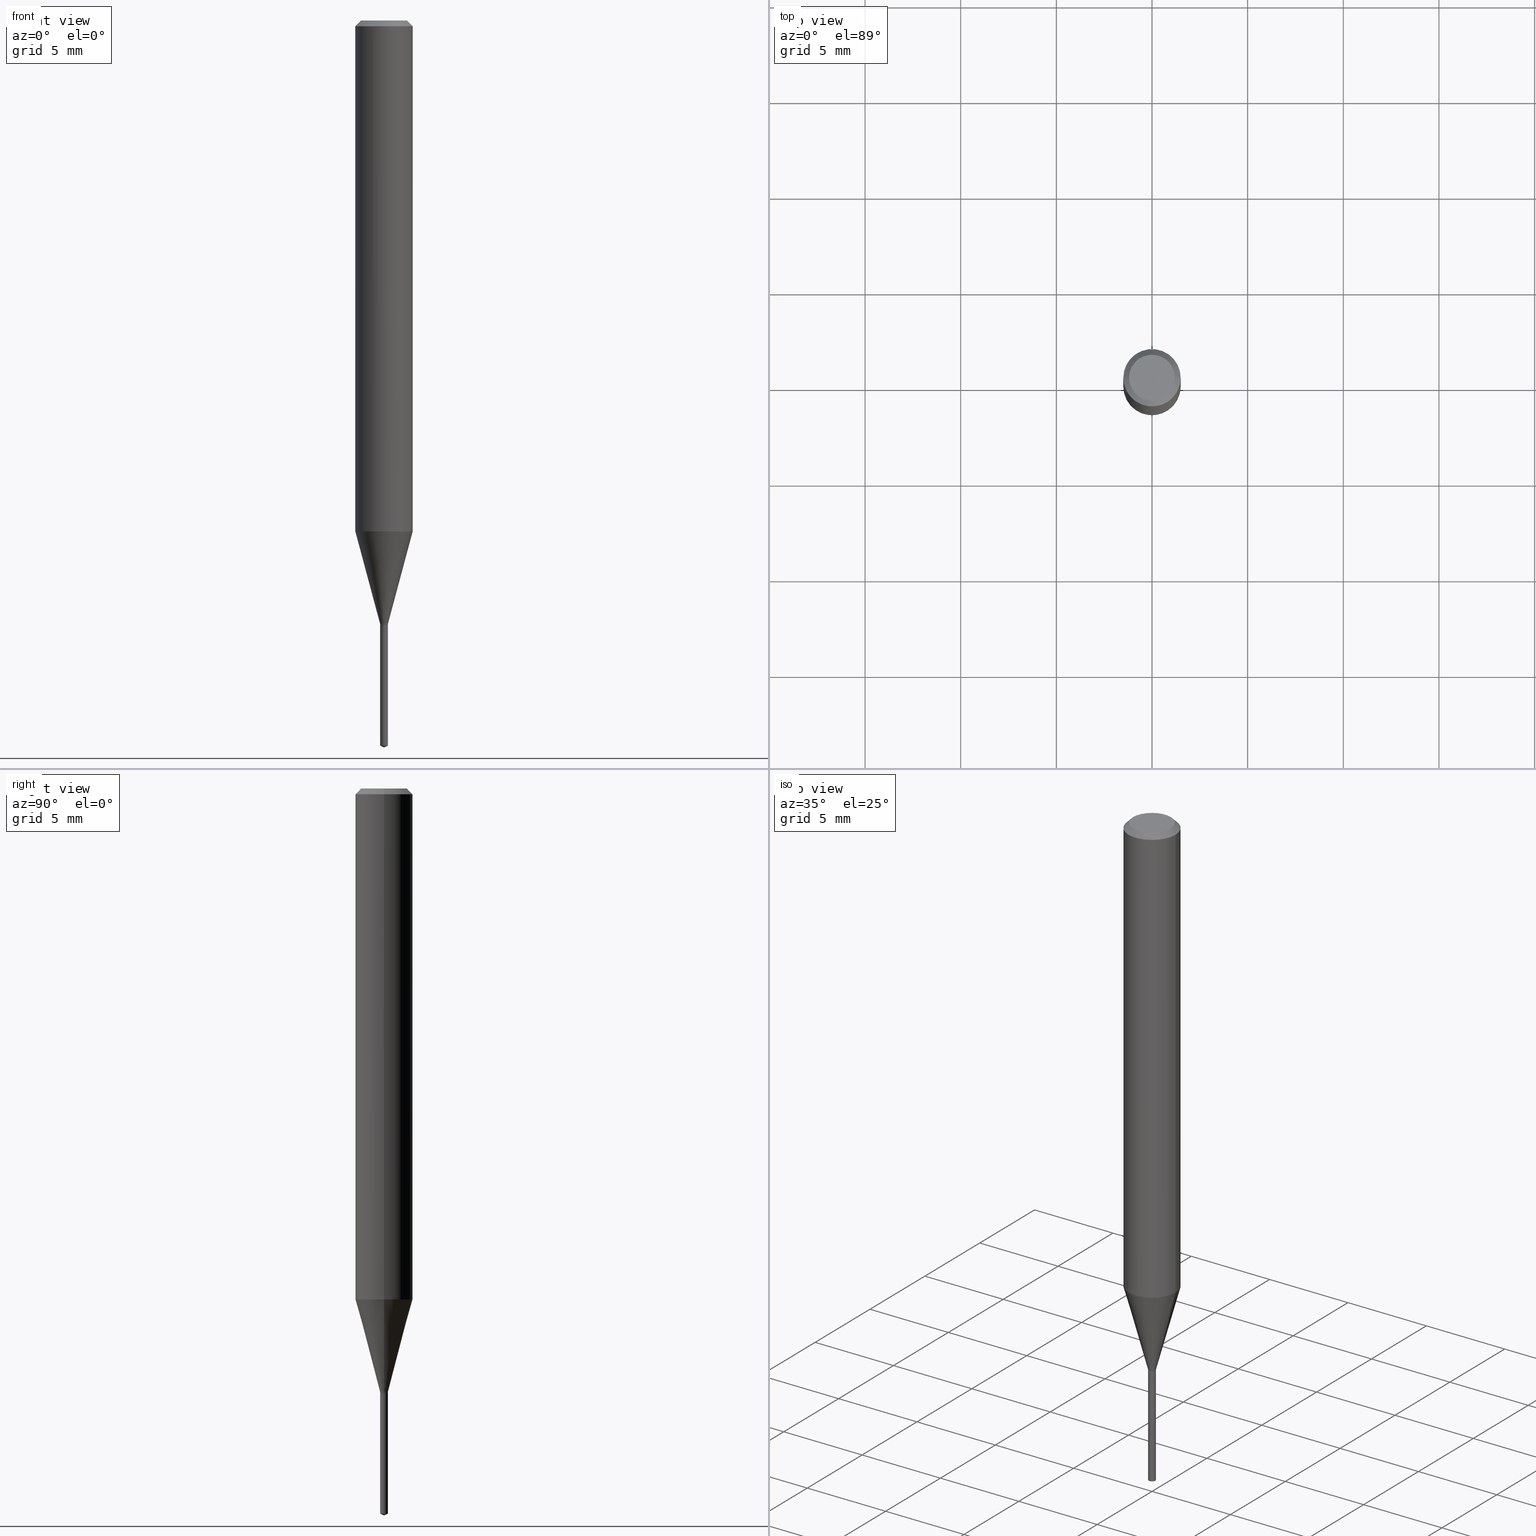
[diagram: canonical four-view strip — front | top / right | iso, engineering-drawing reading convention]
A machine part, canonical four-view strip (front | top / right | iso — engineering-drawing reading convention). The complete STEP part file that produces these views, byte-faithful:
ISO-10303-21;
HEADER;
FILE_DESCRIPTION (( 'STEP AP203' ),
    '1' );
FILE_NAME ('08265.STEP',
    '2024-04-24T14:00:18',
    ( '' ),
    ( '' ),
    'SwSTEP 2.0',
    'SolidWorks 2023',
    '' );
FILE_SCHEMA (( 'CONFIG_CONTROL_DESIGN' ));
ENDSEC;

DATA;
#1 = COORDINATED_UNIVERSAL_TIME_OFFSET ( 5, 0, .BEHIND. ) ;
#2 = AXIS2_PLACEMENT_3D ( 'NONE', #402, #371, #288 ) ;
#3 = ORIENTED_EDGE ( 'NONE', *, *, #348, .F. ) ;
#4 = LINE ( 'NONE', #317, #96 ) ;
#5 = ADVANCED_FACE ( 'NONE', ( #278 ), #463, .T. ) ;
#6 = VERTEX_POINT ( 'NONE', #207 ) ;
#7 = EDGE_LOOP ( 'NONE', ( #222, #225 ) ) ;
#8 = DIRECTION ( 'NONE',  ( -0.2588190451025211281, 5.211531920934547886E-15, 0.9659258262890679791 ) ) ;
#9 = CARTESIAN_POINT ( 'NONE',  ( 0.000000000000000000, 0.000000000000000000, 0.000000000000000000 ) ) ;
#10 = EDGE_LOOP ( 'NONE', ( #230, #16, #115, #62 ) ) ;
#11 = LOCAL_TIME ( 10, 0, 18.00000000000000000, #1 ) ;
#12 = LINE ( 'NONE', #240, #439 ) ;
#13 = ADVANCED_FACE ( 'NONE', ( #172 ), #138, .T. ) ;
#14 = DIRECTION ( 'NONE',  ( 1.000000000000000000, -6.982962677686314831E-15, 0.000000000000000000 ) ) ;
#15 = PERSON_AND_ORGANIZATION ( #339, #393 ) ;
#16 = ORIENTED_EDGE ( 'NONE', *, *, #215, .T. ) ;
#17 = FACE_OUTER_BOUND ( 'NONE', #260, .T. ) ;
#18 = DIRECTION ( 'NONE',  ( 1.000000000000000000, -6.982962677686265922E-15, 4.876176775795935793E-29 ) ) ;
#20 = CARTESIAN_POINT ( 'NONE',  ( -0.05905000000000006771, 4.195754854663396409E-16, -2.904631170795525045E-30 ) ) ;
#19 = AXIS2_PLACEMENT_3D ( 'NONE', #275, #356, #208 ) ;
#21 = APPROVAL ( #295, 'UNSPECIFIED' ) ;
#22 = EDGE_CURVE ( 'NONE', #233, #43, #473, .T. ) ;
#23 = DIRECTION ( 'NONE',  ( -2.445468806185136597E-29, 3.491481338843145583E-15, 1.000000000000000000 ) ) ;
#24 = DIRECTION ( 'NONE',  ( 2.442705339250343681E-29, -3.495438780780538501E-15, -1.000000000000000000 ) ) ;
#25 = DIRECTION ( 'NONE',  ( 0.2588190451025211281, 1.565188264969622954E-15, 0.9659258262890679791 ) ) ;
#26 = CARTESIAN_POINT ( 'NONE',  ( -0.008049999999999999864, 5.719869022868806400E-17, -3.959742747655199383E-31 ) ) ;
#27 = FACE_OUTER_BOUND ( 'NONE', #450, .T. ) ;
#28 = DIRECTION ( 'NONE',  ( 2.445468806185136597E-29, -3.491481338843145583E-15, -1.000000000000000000 ) ) ;
#29 = AXIS2_PLACEMENT_3D ( 'NONE', #307, #64, #231 ) ;
#30 = CARTESIAN_POINT ( 'NONE',  ( 3.042407741774928155E-29, -4.343751933654757151E-15, -1.244099999999999984 ) ) ;
#31 = CARTESIAN_POINT ( 'NONE',  ( 4.132873053354867254E-48, -5.900647395337818946E-34, -1.690012582823346072E-19 ) ) ;
#32 = FACE_OUTER_BOUND ( 'NONE', #411, .T. ) ;
#33 = CARTESIAN_POINT ( 'NONE',  ( -5.621284955534401592E-17, -0.008050000000004343612, -1.244099999999999984 ) ) ;
#34 = DIRECTION ( 'NONE',  ( -1.000000000000000000, 6.982962677686265922E-15, -4.876176775795935793E-29 ) ) ;
#35 = CARTESIAN_POINT ( 'NONE',  ( 0.05905000000000013016, -4.083166651296605957E-15, -1.051365408813987212 ) ) ;
#36 = EDGE_LOOP ( 'NONE', ( #384, #107, #187, #431 ) ) ;
#37 = PERSON_AND_ORGANIZATION_ROLE ( 'creator' ) ;
#38 = ORIENTED_EDGE ( 'NONE', *, *, #472, .F. ) ;
#39 = DIRECTION ( 'NONE',  ( -2.442705339250343681E-29, 3.495438780780538895E-15, 1.000000000000000000 ) ) ;
#40 = VECTOR ( 'NONE', #212, 39.37007874015748143 ) ;
#41 = CIRCLE ( 'NONE', #29, 0.05905000000000013016 ) ;
#42 = CALENDAR_DATE ( 2024, 24, 4 ) ;
#43 = VERTEX_POINT ( 'NONE', #265 ) ;
#44 = LINE ( 'NONE', #316, #142 ) ;
#45 = ORIENTED_EDGE ( 'NONE', *, *, #229, .T. ) ;
#46 = EDGE_CURVE ( 'NONE', #159, #233, #423, .T. ) ;
#47 = APPROVAL_ROLE ( '' ) ;
#48 = AXIS2_PLACEMENT_3D ( 'NONE', #363, #24, #171 ) ;
#49 = VERTEX_POINT ( 'NONE', #124 ) ;
#50 = ORIENTED_EDGE ( 'NONE', *, *, #109, .F. ) ;
#51 = CARTESIAN_POINT ( 'NONE',  ( 3.042407741774928155E-29, -4.343751933654757151E-15, -1.244099999999999984 ) ) ;
#52 = ORIENTED_EDGE ( 'NONE', *, *, #46, .T. ) ;
#53 = CARTESIAN_POINT ( 'NONE',  ( 0.007549999999999999420, -4.396473301871288926E-15, -1.244099999999999984 ) ) ;
#54 = ADVANCED_FACE ( 'NONE', ( #250 ), #99, .T. ) ;
#55 = VECTOR ( 'NONE', #25, 39.37007874015748854 ) ;
#56 = APPROVAL_PERSON_ORGANIZATION ( #15, #141, #129 ) ;
#57 = CARTESIAN_POINT ( 'NONE',  ( 0.008049999999999999864, -5.621284955537444870E-17, 3.925322304515728240E-31 ) ) ;
#58 = PERSON_AND_ORGANIZATION_ROLE ( 'design_owner' ) ;
#59 = FACE_OUTER_BOUND ( 'NONE', #232, .T. ) ;
#60 = DIRECTION ( 'NONE',  ( -2.445468806185136597E-29, 3.491481338843145583E-15, 1.000000000000000000 ) ) ;
#61 = ADVANCED_FACE ( 'NONE', ( #459 ), #432, .F. ) ;
#62 = ORIENTED_EDGE ( 'NONE', *, *, #404, .F. ) ;
#63 = CARTESIAN_POINT ( 'NONE',  ( 3.042407741774928155E-29, -4.343751933654757151E-15, -1.244099999999999984 ) ) ;
#64 = DIRECTION ( 'NONE',  ( -2.445468806185136597E-29, 3.491481338843145583E-15, 1.000000000000000000 ) ) ;
#65 = CARTESIAN_POINT ( 'NONE',  ( -5.621284955533795155E-17, -0.008050000000005212708, -1.492346223351852297 ) ) ;
#66 = CIRCLE ( 'NONE', #121, 0.008050000000000001599 ) ;
#67 = AXIS2_PLACEMENT_3D ( 'NONE', #185, #74, #440 ) ;
#68 = CYLINDRICAL_SURFACE ( 'NONE', #19, 0.008049999999999999864 ) ;
#69 = CARTESIAN_POINT ( 'NONE',  ( -0.007549999999999999420, -4.290105957104869974E-15, -1.244099999999999984 ) ) ;
#70 = FACE_OUTER_BOUND ( 'NONE', #342, .T. ) ;
#71 = EDGE_CURVE ( 'NONE', #486, #349, #168, .T. ) ;
#72 = CYLINDRICAL_SURFACE ( 'NONE', #2, 0.05905000000000006771 ) ;
#73 = CARTESIAN_POINT ( 'NONE',  ( 3.041185007371835914E-29, -4.342006192985336437E-15, -1.243600000000000039 ) ) ;
#74 = DIRECTION ( 'NONE',  ( -2.445468806185136597E-29, 3.491481338843145583E-15, 1.000000000000000000 ) ) ;
#75 = CIRCLE ( 'NONE', #343, 0.008049999999999999864 ) ;
#76 = PERSON_AND_ORGANIZATION ( #339, #393 ) ;
#77 = EDGE_LOOP ( 'NONE', ( #261, #358, #79, #306 ) ) ;
#78 = SECURITY_CLASSIFICATION_LEVEL ( 'unclassified' ) ;
#79 = ORIENTED_EDGE ( 'NONE', *, *, #273, .F. ) ;
#80 = CONICAL_SURFACE ( 'NONE', #108, 0.05904999999999999832, 0.7853981633974452814 ) ;
#81 = APPROVAL_ROLE ( '' ) ;
#82 = APPROVAL_DATE_TIME ( #419, #134 ) ;
#83 = COORDINATED_UNIVERSAL_TIME_OFFSET ( 5, 0, .BEHIND. ) ;
#84 = VERTEX_POINT ( 'NONE', #369 ) ;
#85 = DATE_AND_TIME ( #184, #302 ) ;
#86 = VERTEX_POINT ( 'NONE', #35 ) ;
#87 = SHAPE_DEFINITION_REPRESENTATION ( #262, #218 ) ;
#88 = AXIS2_PLACEMENT_3D ( 'NONE', #437, #204, #101 ) ;
#89 = CONICAL_SURFACE ( 'NONE', #158, 84.42940631927518780, 1.134464013796319781 ) ;
#90 = VERTEX_POINT ( 'NONE', #299 ) ;
#91 = ORIENTED_EDGE ( 'NONE', *, *, #92, .F. ) ;
#92 = EDGE_CURVE ( 'NONE', #126, #43, #44, .T. ) ;
#93 =( CONVERSION_BASED_UNIT ( 'INCH', #467 ) LENGTH_UNIT ( ) NAMED_UNIT ( #408 ) );
#94 = ORIENTED_EDGE ( 'NONE', *, *, #92, .T. ) ;
#95 = CARTESIAN_POINT ( 'NONE',  ( 3.648800117005231285E-29, -5.211481409941128665E-15, -1.492346223351852297 ) ) ;
#96 = VECTOR ( 'NONE', #224, 39.37007874015748143 ) ;
#97 = LOCAL_TIME ( 10, 0, 18.00000000000000000, #381 ) ;
#98 = DIRECTION ( 'NONE',  ( -2.442705339250343681E-29, 3.495438780780538895E-15, 1.000000000000000000 ) ) ;
#99 = CYLINDRICAL_SURFACE ( 'NONE', #360, 0.008049999999999999864 ) ;
#100 = CIRCLE ( 'NONE', #219, 0.008049999999999999864 ) ;
#101 = DIRECTION ( 'NONE',  ( -1.000000000000000000, 6.982962677686266711E-15, 0.000000000000000000 ) ) ;
#103 = DIRECTION ( 'NONE',  ( -2.445468806185136597E-29, 3.491481338843145583E-15, 1.000000000000000000 ) ) ;
#102 = CC_DESIGN_APPROVAL ( #141, ( #460 ) ) ;
#104 = FACE_OUTER_BOUND ( 'NONE', #77, .T. ) ;
#105 = EDGE_CURVE ( 'NONE', #387, #330, #420, .T. ) ;
#106 = DIRECTION ( 'NONE',  ( -0.7071067811866191821, 7.493145998870612907E-15, 0.7071067811864758523 ) ) ;
#107 = ORIENTED_EDGE ( 'NONE', *, *, #477, .T. ) ;
#108 = AXIS2_PLACEMENT_3D ( 'NONE', #206, #28, #435 ) ;
#109 = EDGE_CURVE ( 'NONE', #349, #84, #100, .T. ) ;
#110 = EDGE_CURVE ( 'NONE', #49, #422, #365, .T. ) ;
#111 = DIRECTION ( 'NONE',  ( -2.442705339250343681E-29, 3.495438780780538895E-15, 1.000000000000000000 ) ) ;
#112 = AXIS2_PLACEMENT_3D ( 'NONE', #239, #242, #18 ) ;
#113 = AXIS2_PLACEMENT_3D ( 'NONE', #438, #103, #255 ) ;
#114 = COORDINATED_UNIVERSAL_TIME_OFFSET ( 5, 0, .BEHIND. ) ;
#115 = ORIENTED_EDGE ( 'NONE', *, *, #235, .T. ) ;
#116 = VERTEX_POINT ( 'NONE', #169 ) ;
#117 = APPLICATION_CONTEXT ( 'configuration controlled 3d designs of mechanical parts and assemblies' ) ;
#118 = CARTESIAN_POINT ( 'NONE',  ( 3.648800117005231285E-29, -5.211481409941128665E-15, -1.492346223351852297 ) ) ;
#119 = ORIENTED_EDGE ( 'NONE', *, *, #132, .F. ) ;
#120 = DIRECTION ( 'NONE',  ( -6.982962677686265133E-15, -1.000000000000000000, 0.000000000000000000 ) ) ;
#121 = AXIS2_PLACEMENT_3D ( 'NONE', #95, #462, #324 ) ;
#122 = AXIS2_PLACEMENT_3D ( 'NONE', #210, #180, #331 ) ;
#123 = ORIENTED_EDGE ( 'NONE', *, *, #477, .F. ) ;
#124 = CARTESIAN_POINT ( 'NONE',  ( -0.05905000000000013016, -3.251247219712891149E-15, -1.051365408813987212 ) ) ;
#125 = CARTESIAN_POINT ( 'NONE',  ( 0.05904999999999999832, -4.535783407291118600E-16, -0.01181000000000007218 ) ) ;
#126 = VERTEX_POINT ( 'NONE', #287 ) ;
#127 = DIRECTION ( 'NONE',  ( 0.000000000000000000, 0.000000000000000000, 1.000000000000000000 ) ) ;
#128 = FACE_OUTER_BOUND ( 'NONE', #152, .T. ) ;
#129 = APPROVAL_ROLE ( '' ) ;
#130 = CLOSED_SHELL ( 'NONE', ( #54, #322, #13, #281, #193 ) ) ;
#131 = AXIS2_PLACEMENT_3D ( 'NONE', #234, #136, #403 ) ;
#132 = EDGE_CURVE ( 'NONE', #159, #126, #66, .T. ) ;
#133 = FACE_OUTER_BOUND ( 'NONE', #153, .T. ) ;
#134 = APPROVAL ( #447, 'UNSPECIFIED' ) ;
#135 = DIRECTION ( 'NONE',  ( -6.328713451373386733E-15, -0.9063077870366508249, 0.4226182617406975539 ) ) ;
#136 = DIRECTION ( 'NONE',  ( -2.445468806185136597E-29, 3.491481338843145583E-15, 1.000000000000000000 ) ) ;
#137 = DIRECTION ( 'NONE',  ( -2.442705339250343681E-29, 3.495438780780538895E-15, 1.000000000000000000 ) ) ;
#138 = CONICAL_SURFACE ( 'NONE', #292, 84.42940631927518780, 1.134464013796319781 ) ;
#139 = AXIS2_PLACEMENT_3D ( 'NONE', #323, #283, #209 ) ;
#140 = DIRECTION ( 'NONE',  ( -2.445468806185136597E-29, 3.491481338843145583E-15, 1.000000000000000000 ) ) ;
#141 = APPROVAL ( #164, 'UNSPECIFIED' ) ;
#142 = VECTOR ( 'NONE', #396, 39.37007874015748143 ) ;
#143 = CIRCLE ( 'NONE', #176, 0.04724000000000000421 ) ;
#144 = CIRCLE ( 'NONE', #311, 0.008049999999999999864 ) ;
#145 = PERSON_AND_ORGANIZATION ( #339, #393 ) ;
#146 = ORIENTED_EDGE ( 'NONE', *, *, #71, .F. ) ;
#147 = APPROVAL_DATE_TIME ( #409, #21 ) ;
#148 = ADVANCED_FACE ( 'NONE', ( #133 ), #245, .T. ) ;
#149 = ORIENTED_EDGE ( 'NONE', *, *, #235, .F. ) ;
#150 = CIRCLE ( 'NONE', #433, 0.008049999999999999864 ) ;
#151 = DATE_AND_TIME ( #379, #97 ) ;
#152 = EDGE_LOOP ( 'NONE', ( #146, #249, #196, #50 ) ) ;
#153 = EDGE_LOOP ( 'NONE', ( #155, #296, #417, #458 ) ) ;
#154 = CC_DESIGN_DATE_AND_TIME_ASSIGNMENT ( #151, #413, ( #294 ) ) ;
#155 = ORIENTED_EDGE ( 'NONE', *, *, #305, .F. ) ;
#156 = DIRECTION ( 'NONE',  ( 0.7071067811866191821, -2.468850131083007662E-15, 0.7071067811864758523 ) ) ;
#157 = ADVANCED_FACE ( 'NONE', ( #128 ), #68, .T. ) ;
#158 = AXIS2_PLACEMENT_3D ( 'NONE', #269, #430, #355 ) ;
#159 = VERTEX_POINT ( 'NONE', #65 ) ;
#160 = LINE ( 'NONE', #315, #55 ) ;
#161 = DIRECTION ( 'NONE',  ( -6.982962677686265133E-15, -1.000000000000000000, 0.000000000000000000 ) ) ;
#162 = LINE ( 'NONE', #53, #301 ) ;
#163 = DIRECTION ( 'NONE',  ( -2.445468806185136597E-29, 3.491481338843145583E-15, 1.000000000000000000 ) ) ;
#164 = APPROVAL_STATUS ( 'not_yet_approved' ) ;
#165 = CARTESIAN_POINT ( 'NONE',  ( 0.007549999999999999420, -4.396473301871288926E-15, -1.244099999999999984 ) ) ;
#166 = CARTESIAN_POINT ( 'NONE',  ( 3.042407741774928155E-29, -4.343751933654757151E-15, -1.244099999999999984 ) ) ;
#167 = VECTOR ( 'NONE', #106, 39.37007874015748143 ) ;
#168 = LINE ( 'NONE', #26, #40 ) ;
#169 = CARTESIAN_POINT ( 'NONE',  ( 3.654531458052439160E-29, -5.229525959925763787E-15, -1.496099999999999985 ) ) ;
#170 = CARTESIAN_POINT ( 'NONE',  ( -0.008049999999999999864, -4.281490595484747109E-15, -1.241700000000000026 ) ) ;
#171 = DIRECTION ( 'NONE',  ( 6.982962677686265922E-15, 1.000000000000000000, -3.495438780780538501E-15 ) ) ;
#172 = FACE_OUTER_BOUND ( 'NONE', #216, .T. ) ;
#173 = DIRECTION ( 'NONE',  ( 1.000000000000000000, -6.982962677686314042E-15, 0.000000000000000000 ) ) ;
#174 = PLANE ( 'NONE',  #213 ) ;
#175 = VECTOR ( 'NONE', #457, 39.37007874015748143 ) ;
#176 = AXIS2_PLACEMENT_3D ( 'NONE', #314, #274, #394 ) ;
#177 = UNCERTAINTY_MEASURE_WITH_UNIT (LENGTH_MEASURE( 1.000000000000000082E-05 ), #93, 'distance_accuracy_value', 'NONE');
#178 = LINE ( 'NONE', #243, #383 ) ;
#179 = ORIENTED_EDGE ( 'NONE', *, *, #318, .F. ) ;
#180 = DIRECTION ( 'NONE',  ( -2.445468806185136597E-29, 3.491481338843145583E-15, 1.000000000000000000 ) ) ;
#181 = LINE ( 'NONE', #211, #189 ) ;
#182 = EDGE_CURVE ( 'NONE', #6, #84, #359, .T. ) ;
#183 = EDGE_CURVE ( 'NONE', #90, #194, #361, .T. ) ;
#184 = CALENDAR_DATE ( 2024, 24, 4 ) ;
#185 = CARTESIAN_POINT ( 'NONE',  ( 3.041185007371835914E-29, -4.342006192985336437E-15, -1.243600000000000039 ) ) ;
#186 = EDGE_CURVE ( 'NONE', #116, #126, #200, .T. ) ;
#187 = ORIENTED_EDGE ( 'NONE', *, *, #366, .T. ) ;
#188 = ORIENTED_EDGE ( 'NONE', *, *, #357, .F. ) ;
#189 = VECTOR ( 'NONE', #480, 39.37007874015748143 ) ;
#190 = ORIENTED_EDGE ( 'NONE', *, *, #479, .T. ) ;
#191 = EDGE_CURVE ( 'NONE', #330, #387, #400, .T. ) ;
#192 =( NAMED_UNIT ( * ) PLANE_ANGLE_UNIT ( ) SI_UNIT ( $, .RADIAN. ) );
#193 = ADVANCED_FACE ( 'NONE', ( #280 ), #436, .F. ) ;
#194 = VERTEX_POINT ( 'NONE', #327 ) ;
#195 = DIRECTION ( 'NONE',  ( -6.982962677686265133E-15, -1.000000000000000000, 0.000000000000000000 ) ) ;
#196 = ORIENTED_EDGE ( 'NONE', *, *, #182, .T. ) ;
#197 = DIRECTION ( 'NONE',  ( 1.000000000000000000, -6.982962677686314042E-15, 0.000000000000000000 ) ) ;
#198 = CIRCLE ( 'NONE', #258, 0.008050000000000001599 ) ;
#199 = DIRECTION ( 'NONE',  ( 1.000000000000000000, 0.000000000000000000, 0.000000000000000000 ) ) ;
#200 = LINE ( 'NONE', #277, #246 ) ;
#201 = CARTESIAN_POINT ( 'NONE',  ( 3.042407741774928155E-29, -4.343751933654757151E-15, -1.244099999999999984 ) ) ;
#202 = DIRECTION ( 'NONE',  ( -2.445468806185136597E-29, 3.491481338843145583E-15, 1.000000000000000000 ) ) ;
#203 = VECTOR ( 'NONE', #465, 39.37007874015748143 ) ;
#204 = DIRECTION ( 'NONE',  ( 2.445468806185136597E-29, -3.491481338843145583E-15, -1.000000000000000000 ) ) ;
#205 = CC_DESIGN_APPROVAL ( #21, ( #401 ) ) ;
#206 = CARTESIAN_POINT ( 'NONE',  ( 2.888098660104664204E-31, -4.123439461173780263E-17, -0.01181000000000007218 ) ) ;
#207 = CARTESIAN_POINT ( 'NONE',  ( 0.008049999999999999864, -4.398219042540710429E-15, -1.243600000000000039 ) ) ;
#208 = DIRECTION ( 'NONE',  ( 1.000000000000000000, -6.982962677686266711E-15, 4.876176775795935793E-29 ) ) ;
#209 = DIRECTION ( 'NONE',  ( 1.000000000000000000, -6.982962677686266711E-15, 0.000000000000000000 ) ) ;
#210 = CARTESIAN_POINT ( 'NONE',  ( 0.000000000000000000, 0.000000000000000000, 0.000000000000000000 ) ) ;
#211 = CARTESIAN_POINT ( 'NONE',  ( 0.05904999999999999832, -4.463468013801466955E-16, -0.01181000000000007218 ) ) ;
#212 = DIRECTION ( 'NONE',  ( -2.445468806185136877E-29, 3.491481338843145188E-15, 1.000000000000000000 ) ) ;
#213 = AXIS2_PLACEMENT_3D ( 'NONE', #31, #362, #34 ) ;
#214 = FACE_OUTER_BOUND ( 'NONE', #10, .T. ) ;
#215 = EDGE_CURVE ( 'NONE', #49, #86, #455, .T. ) ;
#216 = EDGE_LOOP ( 'NONE', ( #282, #190, #217 ) ) ;
#217 = ORIENTED_EDGE ( 'NONE', *, *, #426, .F. ) ;
#218 = ADVANCED_BREP_SHAPE_REPRESENTATION ( '08265', ( #376, #367, #248 ), #444 ) ;
#219 = AXIS2_PLACEMENT_3D ( 'NONE', #251, #60, #14 ) ;
#220 = EDGE_LOOP ( 'NONE', ( #264, #380 ) ) ;
#221 = DATE_AND_TIME ( #42, #466 ) ;
#222 = ORIENTED_EDGE ( 'NONE', *, *, #105, .F. ) ;
#223 = ADVANCED_FACE ( 'NONE', ( #27 ), #448, .T. ) ;
#224 = DIRECTION ( 'NONE',  ( -0.7071067811865453523, 2.468850131082234184E-15, -0.7071067811865496822 ) ) ;
#225 = ORIENTED_EDGE ( 'NONE', *, *, #191, .F. ) ;
#226 = CLOSED_SHELL ( 'NONE', ( #223, #333, #244, #341, #372, #157, #148, #454, #5, #469, #61, #329 ) ) ;
#227 = CIRCLE ( 'NONE', #139, 0.05904999999999999832 ) ;
#228 = CC_DESIGN_APPROVAL ( #134, ( #294 ) ) ;
#229 = EDGE_CURVE ( 'NONE', #6, #486, #374, .T. ) ;
#230 = ORIENTED_EDGE ( 'NONE', *, *, #110, .F. ) ;
#231 = DIRECTION ( 'NONE',  ( 1.000000000000000000, -6.982962677686265133E-15, 0.000000000000000000 ) ) ;
#232 = EDGE_LOOP ( 'NONE', ( #254, #410, #119 ) ) ;
#233 = VERTEX_POINT ( 'NONE', #33 ) ;
#234 = CARTESIAN_POINT ( 'NONE',  ( 8.265746106709734507E-48, -1.180129479067563789E-33, -3.380025165646692144E-19 ) ) ;
#235 = EDGE_CURVE ( 'NONE', #86, #313, #487, .T. ) ;
#236 = AXIS2_PLACEMENT_3D ( 'NONE', #9, #428, #312 ) ;
#237 = PERSON_AND_ORGANIZATION ( #339, #393 ) ;
#238 = ORIENTED_EDGE ( 'NONE', *, *, #22, .T. ) ;
#239 = CARTESIAN_POINT ( 'NONE',  ( 3.042407741774928155E-29, -4.343751933654757151E-15, -1.244099999999999984 ) ) ;
#240 = CARTESIAN_POINT ( 'NONE',  ( -0.008049999999999999864, -4.278173688212845858E-15, -1.241700000000000026 ) ) ;
#241 = DIRECTION ( 'NONE',  ( 6.439704144417040608E-15, 0.9063077870366537114, 0.4226182617406912811 ) ) ;
#242 = DIRECTION ( 'NONE',  ( -2.438088387897960049E-29, 3.491481338843145188E-15, 1.000000000000000000 ) ) ;
#243 = CARTESIAN_POINT ( 'NONE',  ( 3.654531458052439160E-29, -5.229525959925762998E-15, -1.496099999999999985 ) ) ;
#244 = ADVANCED_FACE ( 'NONE', ( #70 ), #489, .T. ) ;
#245 = CONICAL_SURFACE ( 'NONE', #350, 0.008049999999999999864, 0.2617993877991498519 ) ;
#246 = VECTOR ( 'NONE', #241, 39.37007874015748854 ) ;
#247 = EDGE_CURVE ( 'NONE', #84, #349, #144, .T. ) ;
#248 = AXIS2_PLACEMENT_3D ( 'NONE', #270, #127, #199 ) ;
#249 = ORIENTED_EDGE ( 'NONE', *, *, #348, .T. ) ;
#250 = FACE_OUTER_BOUND ( 'NONE', #309, .T. ) ;
#251 = CARTESIAN_POINT ( 'NONE',  ( 3.036538616640084053E-29, -4.335372378441533934E-15, -1.241700000000000026 ) ) ;
#252 = CC_DESIGN_PERSON_AND_ORGANIZATION_ASSIGNMENT ( #340, #37, ( #401 ) ) ;
#253 = DIRECTION ( 'NONE',  ( -2.445468806185136597E-29, 3.491481338843145583E-15, 1.000000000000000000 ) ) ;
#254 = ORIENTED_EDGE ( 'NONE', *, *, #479, .F. ) ;
#255 = DIRECTION ( 'NONE',  ( 1.000000000000000000, -6.982962677686314042E-15, 0.000000000000000000 ) ) ;
#256 = DATE_TIME_ROLE ( 'creation_date' ) ;
#257 = PERSON_AND_ORGANIZATION_ROLE ( 'design_supplier' ) ;
#258 = AXIS2_PLACEMENT_3D ( 'NONE', #118, #421, #353 ) ;
#259 = CALENDAR_DATE ( 2024, 24, 4 ) ;
#260 = EDGE_LOOP ( 'NONE', ( #188, #336, #345, #3 ) ) ;
#261 = ORIENTED_EDGE ( 'NONE', *, *, #247, .T. ) ;
#262 = PRODUCT_DEFINITION_SHAPE ( 'NONE', 'NONE',  #460 ) ;
#263 = EDGE_CURVE ( 'NONE', #387, #6, #162, .T. ) ;
#264 = ORIENTED_EDGE ( 'NONE', *, *, #318, .T. ) ;
#265 = CARTESIAN_POINT ( 'NONE',  ( 5.719869022872459812E-17, 0.008049999999995656116, -1.244099999999999984 ) ) ;
#266 = DIRECTION ( 'NONE',  ( 1.000000000000000000, -6.982962677686314831E-15, 0.000000000000000000 ) ) ;
#267 = CC_DESIGN_SECURITY_CLASSIFICATION ( #294, ( #401 ) ) ;
#268 = ORIENTED_EDGE ( 'NONE', *, *, #426, .T. ) ;
#269 = CARTESIAN_POINT ( 'NONE',  ( -9.251153205802309711E-28, 1.323910975243184100E-13, 37.87397874015748300 ) ) ;
#270 = CARTESIAN_POINT ( 'NONE',  ( 0.000000000000000000, 0.000000000000000000, 0.000000000000000000 ) ) ;
#271 = DIRECTION ( 'NONE',  ( 1.000000000000000000, -6.982962677686266711E-15, 0.000000000000000000 ) ) ;
#272 = EDGE_LOOP ( 'NONE', ( #123, #179, #338, #377 ) ) ;
#273 = EDGE_CURVE ( 'NONE', #86, #49, #41, .T. ) ;
#274 = DIRECTION ( 'NONE',  ( -2.445468806185136597E-29, 3.491481338843145583E-15, 1.000000000000000000 ) ) ;
#275 = CARTESIAN_POINT ( 'NONE',  ( 0.000000000000000000, 0.000000000000000000, 0.000000000000000000 ) ) ;
#276 = VECTOR ( 'NONE', #434, 39.37007874015748143 ) ;
#277 = CARTESIAN_POINT ( 'NONE',  ( 3.661467811395460725E-29, -5.219679052897141195E-15, -1.496099999999999985 ) ) ;
#278 = FACE_OUTER_BOUND ( 'NONE', #272, .T. ) ;
#279 = CYLINDRICAL_SURFACE ( 'NONE', #236, 0.008049999999999999864 ) ;
#280 = FACE_OUTER_BOUND ( 'NONE', #382, .T. ) ;
#281 = ADVANCED_FACE ( 'NONE', ( #461 ), #424, .T. ) ;
#282 = ORIENTED_EDGE ( 'NONE', *, *, #186, .F. ) ;
#283 = DIRECTION ( 'NONE',  ( -2.445468806185136597E-29, 3.491481338843145583E-15, 1.000000000000000000 ) ) ;
#284 = DIRECTION ( 'NONE',  ( 1.000000000000000000, -6.982962677686265133E-15, 0.000000000000000000 ) ) ;
#285 = CONICAL_SURFACE ( 'NONE', #319, 0.007549999999999999420, 0.7853981633975496424 ) ;
#286 = CARTESIAN_POINT ( 'NONE',  ( 3.036538616640084053E-29, -4.335372378441533934E-15, -1.241700000000000026 ) ) ;
#287 = CARTESIAN_POINT ( 'NONE',  ( 5.719869022872454881E-17, 0.008049999999994788755, -1.492346223351852297 ) ) ;
#288 = DIRECTION ( 'NONE',  ( 1.000000000000000000, -6.982962677686266711E-15, 4.876176775795936353E-29 ) ) ;
#289 = APPLICATION_CONTEXT ( 'configuration controlled 3d designs of mechanical parts and assemblies' ) ;
#290 = CC_DESIGN_PERSON_AND_ORGANIZATION_ASSIGNMENT ( #297, #445, ( #294 ) ) ;
#291 = ORIENTED_EDGE ( 'NONE', *, *, #110, .T. ) ;
#292 = AXIS2_PLACEMENT_3D ( 'NONE', #326, #39, #415 ) ;
#293 = VECTOR ( 'NONE', #412, 39.37007874015748143 ) ;
#294 = SECURITY_CLASSIFICATION ( '', '', #78 ) ;
#295 = APPROVAL_STATUS ( 'not_yet_approved' ) ;
#296 = ORIENTED_EDGE ( 'NONE', *, *, #109, .T. ) ;
#297 = PERSON_AND_ORGANIZATION ( #339, #393 ) ;
#298 = APPROVAL_DATE_TIME ( #85, #141 ) ;
#299 = CARTESIAN_POINT ( 'NONE',  ( 0.04724000000000000421, -3.852183633974369345E-16, -3.380025165621689721E-19 ) ) ;
#300 = ORIENTED_EDGE ( 'NONE', *, *, #357, .T. ) ;
#301 = VECTOR ( 'NONE', #156, 39.37007874015748143 ) ;
#302 = LOCAL_TIME ( 10, 0, 18.00000000000000000, #83 ) ;
#303 = PERSON_AND_ORGANIZATION ( #339, #393 ) ;
#304 = ORIENTED_EDGE ( 'NONE', *, *, #472, .T. ) ;
#305 = EDGE_CURVE ( 'NONE', #349, #49, #12, .T. ) ;
#306 = ORIENTED_EDGE ( 'NONE', *, *, #446, .F. ) ;
#307 = CARTESIAN_POINT ( 'NONE',  ( 2.571081311156689503E-29, -3.670822705179231037E-15, -1.051365408813987212 ) ) ;
#308 = APPLICATION_PROTOCOL_DEFINITION ( 'international standard', 'config_control_design', 1994, #289 ) ;
#309 = EDGE_LOOP ( 'NONE', ( #418, #94, #347, #375 ) ) ;
#310 = CARTESIAN_POINT ( 'NONE',  ( -5.621284955534401592E-17, -0.008050000000004343612, -1.244099999999999984 ) ) ;
#311 = AXIS2_PLACEMENT_3D ( 'NONE', #478, #253, #266 ) ;
#312 = DIRECTION ( 'NONE',  ( 1.000000000000000000, -6.982962677686266711E-15, 4.876176775795935793E-29 ) ) ;
#313 = VERTEX_POINT ( 'NONE', #125 ) ;
#314 = CARTESIAN_POINT ( 'NONE',  ( 8.265746106709734507E-48, -1.180129479067563789E-33, -3.380025165646692144E-19 ) ) ;
#315 = CARTESIAN_POINT ( 'NONE',  ( 0.008049999999999999864, -4.391585227996908716E-15, -1.241700000000000026 ) ) ;
#316 = CARTESIAN_POINT ( 'NONE',  ( 5.719869022871848444E-17, 0.008049999999995656116, -1.244099999999999984 ) ) ;
#317 = CARTESIAN_POINT ( 'NONE',  ( -0.05904999999999999832, 3.711095515056362547E-16, -0.01181000000000007218 ) ) ;
#318 = EDGE_CURVE ( 'NONE', #194, #90, #143, .T. ) ;
#319 = AXIS2_PLACEMENT_3D ( 'NONE', #166, #388, #197 ) ;
#320 =( LENGTH_UNIT ( ) NAMED_UNIT ( * ) SI_UNIT ( $, .METRE. ) );
#321 = CARTESIAN_POINT ( 'NONE',  ( 3.042407741774928155E-29, -4.343751933654757151E-15, -1.244099999999999984 ) ) ;
#322 = ADVANCED_FACE ( 'NONE', ( #59 ), #89, .T. ) ;
#323 = CARTESIAN_POINT ( 'NONE',  ( 2.888098660104664204E-31, -4.123439461173780263E-17, -0.01181000000000007218 ) ) ;
#324 = DIRECTION ( 'NONE',  ( -6.982962677686265922E-15, -1.000000000000000000, 0.000000000000000000 ) ) ;
#325 = CARTESIAN_POINT ( 'NONE',  ( 2.571081311156689503E-29, -3.670822705179231037E-15, -1.051365408813987212 ) ) ;
#326 = CARTESIAN_POINT ( 'NONE',  ( -9.251153205802309711E-28, 1.323910975243184100E-13, 37.87397874015748300 ) ) ;
#327 = CARTESIAN_POINT ( 'NONE',  ( -0.04724000000000000421, 3.504923541997677355E-16, -3.380025165670481712E-19 ) ) ;
#328 = DIRECTION ( 'NONE',  ( -6.982962677686265133E-15, -1.000000000000000000, 0.000000000000000000 ) ) ;
#329 = ADVANCED_FACE ( 'NONE', ( #17 ), #285, .T. ) ;
#330 = VERTEX_POINT ( 'NONE', #464 ) ;
#331 = DIRECTION ( 'NONE',  ( 1.000000000000000000, -6.982962677686266711E-15, 4.876176775795936353E-29 ) ) ;
#332 = CARTESIAN_POINT ( 'NONE',  ( 3.042407741774928155E-29, -4.343751933654757151E-15, -1.244099999999999984 ) ) ;
#333 = ADVANCED_FACE ( 'NONE', ( #351 ), #80, .T. ) ;
#334 = PERSON_AND_ORGANIZATION_ROLE ( 'creator' ) ;
#335 = AXIS2_PLACEMENT_3D ( 'NONE', #201, #202, #468 ) ;
#336 = ORIENTED_EDGE ( 'NONE', *, *, #191, .T. ) ;
#337 = PERSON_AND_ORGANIZATION ( #339, #393 ) ;
#338 = ORIENTED_EDGE ( 'NONE', *, *, #395, .T. ) ;
#339 = PERSON ( 'UNSPECIFIED', 'UNSPECIFIED', 'UNSPECIFIED', ('UNSPECIFIED'), ('UNSPECIFIED'), ('UNSPECIFIED') ) ;
#340 = PERSON_AND_ORGANIZATION ( #339, #393 ) ;
#341 = ADVANCED_FACE ( 'NONE', ( #104 ), #352, .T. ) ;
#342 = EDGE_LOOP ( 'NONE', ( #490, #291, #453, #149 ) ) ;
#343 = AXIS2_PLACEMENT_3D ( 'NONE', #332, #137, #328 ) ;
#344 = CARTESIAN_POINT ( 'NONE',  ( -0.05904999999999999832, -1.436453064429143904E-15, -0.01181000000000007218 ) ) ;
#345 = ORIENTED_EDGE ( 'NONE', *, *, #263, .T. ) ;
#346 = CARTESIAN_POINT ( 'NONE',  ( 2.888098660104664204E-31, -4.123439461173780263E-17, -0.01181000000000007218 ) ) ;
#347 = ORIENTED_EDGE ( 'NONE', *, *, #22, .F. ) ;
#348 = EDGE_CURVE ( 'NONE', #486, #6, #150, .T. ) ;
#349 = VERTEX_POINT ( 'NONE', #170 ) ;
#350 = AXIS2_PLACEMENT_3D ( 'NONE', #399, #163, #397 ) ;
#351 = FACE_OUTER_BOUND ( 'NONE', #36, .T. ) ;
#352 = CONICAL_SURFACE ( 'NONE', #483, 0.008049999999999999864, 0.2617993877991498519 ) ;
#353 = DIRECTION ( 'NONE',  ( -6.982962677686265922E-15, -1.000000000000000000, 0.000000000000000000 ) ) ;
#354 = APPLICATION_PROTOCOL_DEFINITION ( 'international standard', 'config_control_design', 1994, #117 ) ;
#355 = DIRECTION ( 'NONE',  ( -6.982962677686266711E-15, -1.000000000000000000, 3.520397390770418371E-15 ) ) ;
#356 = DIRECTION ( 'NONE',  ( -2.445468806185136597E-29, 3.491481338843145583E-15, 1.000000000000000000 ) ) ;
#357 = EDGE_CURVE ( 'NONE', #330, #486, #470, .T. ) ;
#358 = ORIENTED_EDGE ( 'NONE', *, *, #305, .T. ) ;
#359 = LINE ( 'NONE', #57, #276 ) ;
#360 = AXIS2_PLACEMENT_3D ( 'NONE', #63, #398, #161 ) ;
#361 = CIRCLE ( 'NONE', #131, 0.04724000000000000421 ) ;
#362 = DIRECTION ( 'NONE',  ( 2.438088387897960049E-29, -3.491481338843145188E-15, -1.000000000000000000 ) ) ;
#363 = CARTESIAN_POINT ( 'NONE',  ( 3.042407741774928155E-29, -4.343751933654757151E-15, -1.244099999999999984 ) ) ;
#364 = DIRECTION ( 'NONE',  ( -2.445468806185136597E-29, 3.491481338843145583E-15, 1.000000000000000000 ) ) ;
#365 = LINE ( 'NONE', #20, #203 ) ;
#366 = EDGE_CURVE ( 'NONE', #313, #422, #227, .T. ) ;
#367 = MANIFOLD_SOLID_BREP ( 'Body-Move/Copy2[2]', #226 ) ;
#368 = FACE_OUTER_BOUND ( 'NONE', #220, .T. ) ;
#369 = CARTESIAN_POINT ( 'NONE',  ( 0.008049999999999999864, -4.391585227996908716E-15, -1.241700000000000026 ) ) ;
#370 = EDGE_LOOP ( 'NONE', ( #91, #268, #52, #38 ) ) ;
#371 = DIRECTION ( 'NONE',  ( -2.445468806185136597E-29, 3.491481338843145583E-15, 1.000000000000000000 ) ) ;
#372 = ADVANCED_FACE ( 'NONE', ( #32 ), #279, .T. ) ;
#373 = ORIENTED_EDGE ( 'NONE', *, *, #105, .T. ) ;
#374 = CIRCLE ( 'NONE', #67, 0.008049999999999999864 ) ;
#375 = ORIENTED_EDGE ( 'NONE', *, *, #46, .F. ) ;
#376 = MANIFOLD_SOLID_BREP ( 'Body-Move/Copy2[1]', #130 ) ;
#377 = ORIENTED_EDGE ( 'NONE', *, *, #404, .T. ) ;
#378 = CC_DESIGN_PERSON_AND_ORGANIZATION_ASSIGNMENT ( #337, #334, ( #460 ) ) ;
#379 = CALENDAR_DATE ( 2024, 24, 4 ) ;
#380 = ORIENTED_EDGE ( 'NONE', *, *, #183, .T. ) ;
#381 = COORDINATED_UNIVERSAL_TIME_OFFSET ( 5, 0, .BEHIND. ) ;
#382 = EDGE_LOOP ( 'NONE', ( #238, #304 ) ) ;
#383 = VECTOR ( 'NONE', #135, 39.37007874015748854 ) ;
#384 = ORIENTED_EDGE ( 'NONE', *, *, #183, .F. ) ;
#385 = PRODUCT_RELATED_PRODUCT_CATEGORY ( 'detail', '', ( #485 ) ) ;
#386 =( NAMED_UNIT ( * ) SI_UNIT ( $, .STERADIAN. ) SOLID_ANGLE_UNIT ( ) );
#387 = VERTEX_POINT ( 'NONE', #165 ) ;
#388 = DIRECTION ( 'NONE',  ( -2.445468806185136597E-29, 3.491481338843145583E-15, 1.000000000000000000 ) ) ;
#389 = CARTESIAN_POINT ( 'NONE',  ( -0.008049999999999999864, -4.281490595484747109E-15, -1.243600000000000039 ) ) ;
#390 = DIRECTION ( 'NONE',  ( -2.445468806185136597E-29, 3.491481338843145583E-15, 1.000000000000000000 ) ) ;
#391 = AXIS2_PLACEMENT_3D ( 'NONE', #30, #111, #120 ) ;
#392 = AXIS2_PLACEMENT_3D ( 'NONE', #51, #98, #195 ) ;
#393 = ORGANIZATION ( 'UNSPECIFIED', 'UNSPECIFIED', '' ) ;
#394 = DIRECTION ( 'NONE',  ( 1.000000000000000000, -6.982962677686266711E-15, 4.876185090822587894E-29 ) ) ;
#395 = EDGE_CURVE ( 'NONE', #194, #422, #4, .T. ) ;
#396 = DIRECTION ( 'NONE',  ( -2.442705339250343401E-29, 3.495438780780538501E-15, 1.000000000000000000 ) ) ;
#397 = DIRECTION ( 'NONE',  ( 1.000000000000000000, -6.982962677686314831E-15, 0.000000000000000000 ) ) ;
#398 = DIRECTION ( 'NONE',  ( -2.442705339250343681E-29, 3.495438780780538895E-15, 1.000000000000000000 ) ) ;
#399 = CARTESIAN_POINT ( 'NONE',  ( 3.036538616640084053E-29, -4.335372378441533934E-15, -1.241700000000000026 ) ) ;
#400 = CIRCLE ( 'NONE', #335, 0.007549999999999999420 ) ;
#401 = PRODUCT_DEFINITION_FORMATION_WITH_SPECIFIED_SOURCE ( 'ANY', '', #485, .NOT_KNOWN. ) ;
#402 = CARTESIAN_POINT ( 'NONE',  ( 0.000000000000000000, 0.000000000000000000, 0.000000000000000000 ) ) ;
#403 = DIRECTION ( 'NONE',  ( 1.000000000000000000, -6.982962677686266711E-15, 4.876185090822587894E-29 ) ) ;
#404 = EDGE_CURVE ( 'NONE', #422, #313, #443, .T. ) ;
#405 = DIRECTION ( 'NONE',  ( 1.000000000000000000, -6.982962677686254878E-15, 0.000000000000000000 ) ) ;
#406 = CARTESIAN_POINT ( 'NONE',  ( 0.05905000000000006771, -4.123439461173745257E-16, 2.879382386107503723E-30 ) ) ;
#407 = ORIENTED_EDGE ( 'NONE', *, *, #247, .F. ) ;
#408 = DIMENSIONAL_EXPONENTS ( 1.000000000000000000, 0.000000000000000000, 0.000000000000000000, 0.000000000000000000, 0.000000000000000000, 0.000000000000000000, 0.000000000000000000 ) ;
#409 = DATE_AND_TIME ( #488, #11 ) ;
#410 = ORIENTED_EDGE ( 'NONE', *, *, #186, .T. ) ;
#411 = EDGE_LOOP ( 'NONE', ( #45, #429, #407, #481 ) ) ;
#412 = DIRECTION ( 'NONE',  ( -2.445468806185136877E-29, 3.491481338843145188E-15, 1.000000000000000000 ) ) ;
#413 = DATE_TIME_ROLE ( 'classification_date' ) ;
#414 = AXIS2_PLACEMENT_3D ( 'NONE', #346, #390, #271 ) ;
#415 = DIRECTION ( 'NONE',  ( -6.982962677686266711E-15, -1.000000000000000000, 3.520397390770418371E-15 ) ) ;
#416 = CC_DESIGN_DATE_AND_TIME_ASSIGNMENT ( #221, #256, ( #460 ) ) ;
#417 = ORIENTED_EDGE ( 'NONE', *, *, #446, .T. ) ;
#418 = ORIENTED_EDGE ( 'NONE', *, *, #132, .T. ) ;
#419 = DATE_AND_TIME ( #259, #449 ) ;
#420 = CIRCLE ( 'NONE', #482, 0.007549999999999999420 ) ;
#421 = DIRECTION ( 'NONE',  ( -2.442705339250343681E-29, 3.495438780780538895E-15, 1.000000000000000000 ) ) ;
#422 = VERTEX_POINT ( 'NONE', #344 ) ;
#423 = LINE ( 'NONE', #310, #175 ) ;
#424 = CYLINDRICAL_SURFACE ( 'NONE', #392, 0.008049999999999999864 ) ;
#425 = APPROVAL_PERSON_ORGANIZATION ( #303, #134, #81 ) ;
#426 = EDGE_CURVE ( 'NONE', #126, #159, #198, .T. ) ;
#427 = MECHANICAL_CONTEXT ( 'NONE', #289, 'mechanical' ) ;
#428 = DIRECTION ( 'NONE',  ( -2.445468806185136597E-29, 3.491481338843145583E-15, 1.000000000000000000 ) ) ;
#429 = ORIENTED_EDGE ( 'NONE', *, *, #71, .T. ) ;
#430 = DIRECTION ( 'NONE',  ( -2.442705339250343681E-29, 3.495438780780538895E-15, 1.000000000000000000 ) ) ;
#431 = ORIENTED_EDGE ( 'NONE', *, *, #395, .F. ) ;
#432 = PLANE ( 'NONE',  #112 ) ;
#434 = DIRECTION ( 'NONE',  ( -2.445468806185136877E-29, 3.491481338843145188E-15, 1.000000000000000000 ) ) ;
#433 = AXIS2_PLACEMENT_3D ( 'NONE', #73, #23, #405 ) ;
#435 = DIRECTION ( 'NONE',  ( -1.000000000000000000, 6.982962677686266711E-15, 0.000000000000000000 ) ) ;
#436 = PLANE ( 'NONE',  #48 ) ;
#437 = CARTESIAN_POINT ( 'NONE',  ( 2.888098660104664204E-31, -4.123439461173780263E-17, -0.01181000000000007218 ) ) ;
#438 = CARTESIAN_POINT ( 'NONE',  ( 3.042407741774928155E-29, -4.343751933654757151E-15, -1.244099999999999984 ) ) ;
#439 = VECTOR ( 'NONE', #8, 39.37007874015748854 ) ;
#440 = DIRECTION ( 'NONE',  ( 1.000000000000000000, -6.982962677686254878E-15, 0.000000000000000000 ) ) ;
#441 = DIRECTION ( 'NONE',  ( 1.000000000000000000, -6.982962677686314831E-15, 0.000000000000000000 ) ) ;
#442 = CC_DESIGN_PERSON_AND_ORGANIZATION_ASSIGNMENT ( #237, #58, ( #485 ) ) ;
#443 = CIRCLE ( 'NONE', #414, 0.05904999999999999832 ) ;
#444 =( GEOMETRIC_REPRESENTATION_CONTEXT ( 3 ) GLOBAL_UNCERTAINTY_ASSIGNED_CONTEXT ( ( #177 ) ) GLOBAL_UNIT_ASSIGNED_CONTEXT ( ( #93, #192, #386 ) ) REPRESENTATION_CONTEXT ( 'NONE', 'WORKASPACE' ) );
#445 = PERSON_AND_ORGANIZATION_ROLE ( 'classification_officer' ) ;
#446 = EDGE_CURVE ( 'NONE', #84, #86, #160, .T. ) ;
#447 = APPROVAL_STATUS ( 'not_yet_approved' ) ;
#448 = CONICAL_SURFACE ( 'NONE', #113, 0.007549999999999999420, 0.7853981633975496424 ) ;
#449 = LOCAL_TIME ( 10, 0, 18.00000000000000000, #114 ) ;
#450 = EDGE_LOOP ( 'NONE', ( #373, #300, #451, #456 ) ) ;
#451 = ORIENTED_EDGE ( 'NONE', *, *, #229, .F. ) ;
#452 = CC_DESIGN_PERSON_AND_ORGANIZATION_ASSIGNMENT ( #145, #257, ( #401 ) ) ;
#453 = ORIENTED_EDGE ( 'NONE', *, *, #366, .F. ) ;
#454 = ADVANCED_FACE ( 'NONE', ( #214 ), #72, .T. ) ;
#455 = CIRCLE ( 'NONE', #474, 0.05905000000000013016 ) ;
#456 = ORIENTED_EDGE ( 'NONE', *, *, #263, .F. ) ;
#457 = DIRECTION ( 'NONE',  ( -2.442705339250343401E-29, 3.495438780780538501E-15, 1.000000000000000000 ) ) ;
#458 = ORIENTED_EDGE ( 'NONE', *, *, #215, .F. ) ;
#459 = FACE_OUTER_BOUND ( 'NONE', #7, .T. ) ;
#460 = PRODUCT_DEFINITION ( 'UNKNOWN', '', #401, #476 ) ;
#461 = FACE_OUTER_BOUND ( 'NONE', #370, .T. ) ;
#462 = DIRECTION ( 'NONE',  ( -2.442705339250343681E-29, 3.495438780780538895E-15, 1.000000000000000000 ) ) ;
#463 = CONICAL_SURFACE ( 'NONE', #88, 0.05904999999999999832, 0.7853981633974452814 ) ;
#464 = CARTESIAN_POINT ( 'NONE',  ( -0.007549999999999999420, -4.287456729930758773E-15, -1.244099999999999984 ) ) ;
#465 = DIRECTION ( 'NONE',  ( -2.445468806185136877E-29, 3.491481338843145188E-15, 1.000000000000000000 ) ) ;
#466 = LOCAL_TIME ( 10, 0, 18.00000000000000000, #484 ) ;
#467 = LENGTH_MEASURE_WITH_UNIT ( LENGTH_MEASURE( 0.02539999999999999897 ), #320 );
#468 = DIRECTION ( 'NONE',  ( 1.000000000000000000, -6.982962677686314042E-15, 0.000000000000000000 ) ) ;
#469 = ADVANCED_FACE ( 'NONE', ( #368 ), #174, .F. ) ;
#470 = LINE ( 'NONE', #69, #167 ) ;
#471 = DIRECTION ( 'NONE',  ( -2.445468806185136597E-29, 3.491481338843145583E-15, 1.000000000000000000 ) ) ;
#472 = EDGE_CURVE ( 'NONE', #43, #233, #75, .T. ) ;
#473 = CIRCLE ( 'NONE', #391, 0.008049999999999999864 ) ;
#474 = AXIS2_PLACEMENT_3D ( 'NONE', #325, #471, #284 ) ;
#475 = APPROVAL_PERSON_ORGANIZATION ( #76, #21, #47 ) ;
#476 = DESIGN_CONTEXT ( 'detailed design', #117, 'design' ) ;
#477 = EDGE_CURVE ( 'NONE', #90, #313, #181, .T. ) ;
#478 = CARTESIAN_POINT ( 'NONE',  ( 3.036538616640084053E-29, -4.335372378441533934E-15, -1.241700000000000026 ) ) ;
#479 = EDGE_CURVE ( 'NONE', #116, #159, #178, .T. ) ;
#480 = DIRECTION ( 'NONE',  ( 0.7071067811865453523, -7.319954787623248157E-15, -0.7071067811865496822 ) ) ;
#481 = ORIENTED_EDGE ( 'NONE', *, *, #182, .F. ) ;
#482 = AXIS2_PLACEMENT_3D ( 'NONE', #321, #364, #173 ) ;
#483 = AXIS2_PLACEMENT_3D ( 'NONE', #286, #140, #441 ) ;
#484 = COORDINATED_UNIVERSAL_TIME_OFFSET ( 5, 0, .BEHIND. ) ;
#485 = PRODUCT ( '08265', '08265', '', ( #427 ) ) ;
#486 = VERTEX_POINT ( 'NONE', #389 ) ;
#487 = LINE ( 'NONE', #406, #293 ) ;
#488 = CALENDAR_DATE ( 2024, 24, 4 ) ;
#489 = CYLINDRICAL_SURFACE ( 'NONE', #122, 0.05905000000000006771 ) ;
#490 = ORIENTED_EDGE ( 'NONE', *, *, #273, .T. ) ;
ENDSEC;
END-ISO-10303-21;
